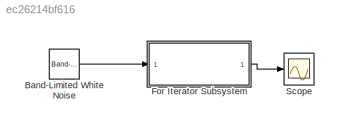
MODEL slx_ec26214bf616
KIND model
CONFIG AbsTol = auto
CONFIG EnableMultiTasking = off
CONFIG FixedStep = auto
CONFIG MaxStep = auto
CONFIG MinStep = auto
CONFIG RelTol = 1e-3
CONFIG SampleTimeConstraint = Unconstrained
CONFIG SolverName = VariableStepAuto
CONFIG StartTime = 0.0
CONFIG StopTime = 10.0
BLOCK [Reference] Band-Limited White Noise  REF=simulink/Sources/Band-Limited
White Noise
  SourceBlock = simulink/Sources/Band-Limited\nWhite Noise
  SourceType = Band-Limited White Noise.
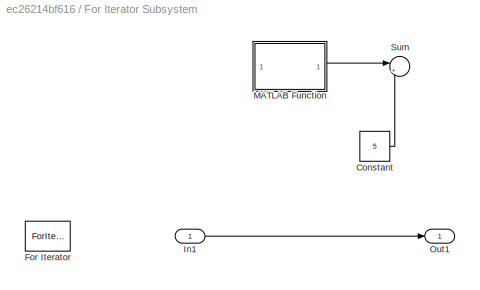
BLOCK [SubSystem] For Iterator Subsystem
  TreatAsAtomicUnit = on
BLOCK [Constant] For Iterator Subsystem/Constant
  Value = 5
BLOCK [ForIterator] For Iterator Subsystem/For Iterator
  IterationLimit = 4
BLOCK [Inport] For Iterator Subsystem/In1
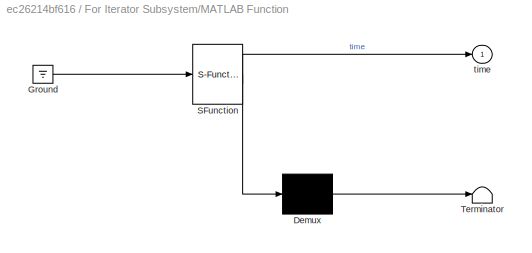
BLOCK [SubSystem] For Iterator Subsystem/MATLAB Function
  ErrorFcn = Stateflow.Translate.translate
  PermitHierarchicalResolution = ExplicitOnly
  SFBlockType = MATLAB Function
  TreatAsAtomicUnit = on
BLOCK [Demux] For Iterator Subsystem/MATLAB Function/ Demux 
  Outputs = 1
BLOCK [Ground] For Iterator Subsystem/MATLAB Function/ Ground 
BLOCK [S-Function] For Iterator Subsystem/MATLAB Function/ SFunction 
  EnableBusSupport = on
  FunctionName = sf_sfun
  PortCounts = [1 2]
  SFcnIsStateOwnerBlock = off
  SFunctionDeploymentMode = off
  Tag = Stateflow S-Function 2
BLOCK [Terminator] For Iterator Subsystem/MATLAB Function/ Terminator 
BLOCK [Outport] For Iterator Subsystem/MATLAB Function/time
BLOCK [Outport] For Iterator Subsystem/Out1
BLOCK [Sum] For Iterator Subsystem/Sum
  Inputs = |++
BLOCK [Scope] Scope
  Floating = off
  NumInputPorts = 1
  ScopeSpecificationString = Simulink.scopes.TimeScopeBlockCfg('CurrentConfiguration', extmgr.ConfigurationSet(extmgr.Configuration('Core','General UI',true),extmgr.Configuration('Core','Source UI',true),extmgr.Configuration('Sources','WiredSimulink',true),extmgr.Configuration('Visuals','Time Domain',true,'SerializedDisplays',{struct('MinYLimReal','-2.94144','MaxYLimReal','3.76225','YLabelReal','','MinYLimMag','0.00000','MaxY...<+1457ch>
LINE Band-Limited White Noise:1 -> For Iterator Subsystem:1
LINE For Iterator Subsystem/Constant:1 -> For Iterator Subsystem/Sum:2
LINE For Iterator Subsystem/In1:1 -> For Iterator Subsystem/Out1:1
LINE For Iterator Subsystem/MATLAB Function:1 -> For Iterator Subsystem/Sum:1
LINE For Iterator Subsystem:1 -> Scope:1
CHART For Iterator
Subsystem/MATLAB Function states=1 transitions=1
  STATE_LABEL 'eML_blk_kernel()'
  STATE_LABEL 'SCRIPT:\nfunction time = SelectPath()\n    persistent minTime maxTime totalTime count;\n\n    if isempty(minTime)\n        minTime = Inf;    \n        maxTime = -Inf;   \n        totalTime = 0;    \n        count = 0;        \n    end\n\n    r = rand();\n\n    if r < 0.2\n        selectedTime = 10;\n    elseif r < 0.7\n        selectedTime = 20;\n    elseif r < 0.8\n        selectedTime = 30;\n    else\n        selec...<+393ch>'
CHART  states=0 transitions=0
